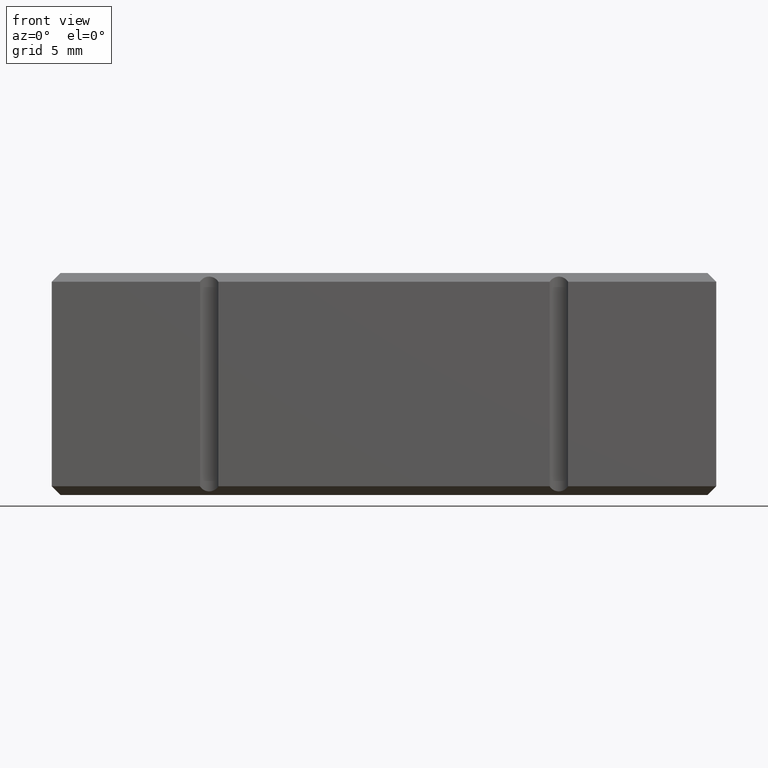
[diagram: clean part render]
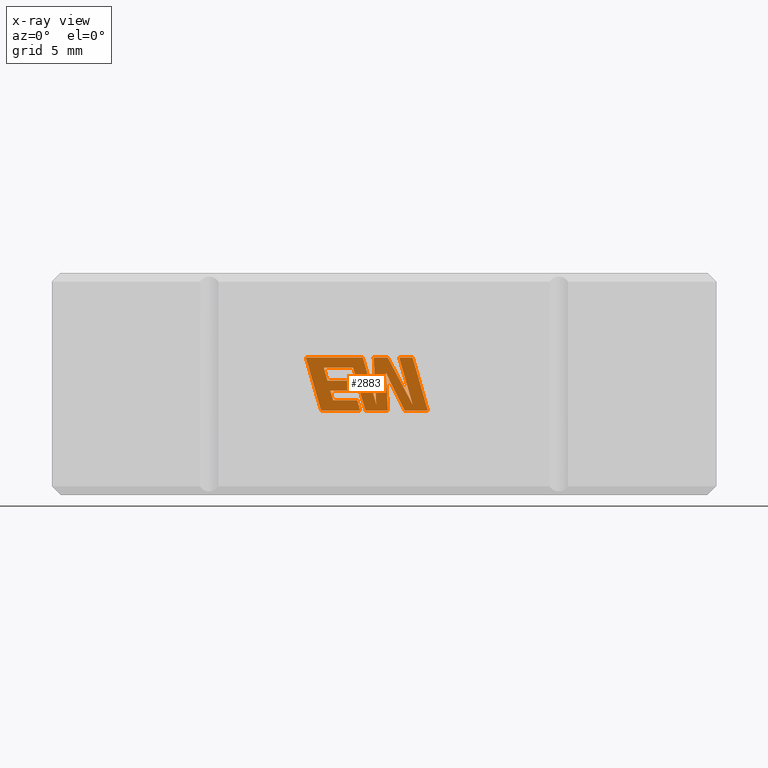
[diagram: x-ray — body ghosted, one internal face saturated and labeled with its STEP entity id]
A machine part, front view, then the same camera in x-ray: the body is ghosted and one INTERNAL B-rep face — a face not visible from any outside direction — is saturated and labeled: STEP entity #2883.
In plain terms, the highlighted planar face has unit normal (0, -1, 0).
Its self-contained STEP definition (entity closure, byte-faithful):
#35 = ORIENTED_EDGE ( 'NONE', *, *, #2086, .F. ) ;
#47 = ORIENTED_EDGE ( 'NONE', *, *, #518, .F. ) ;
#60 = EDGE_CURVE ( 'NONE', #227, #1755, #3002, .T. ) ;
#84 = VECTOR ( 'NONE', #2095, 1000.000000000000227 ) ;
#107 = DIRECTION ( 'NONE',  ( 1.000000000000000000, 0.000000000000000000, 0.000000000000000000 ) ) ;
#119 = DIRECTION ( 'NONE',  ( 0.2763139702539137987, 0.000000000000000000, -0.9610674221107066151 ) ) ;
#133 = ORIENTED_EDGE ( 'NONE', *, *, #1834, .F. ) ;
#146 = EDGE_LOOP ( 'NONE', ( #35, #1732, #2320, #544, #1477, #1903, #47, #1856, #2845, #1356, #1047, #1878, #3263, #3109, #133, #2924, #1586, #172, #1027, #2221, #1473, #793, #2533 ) ) ;
#157 = EDGE_CURVE ( 'NONE', #2633, #1799, #1066, .T. ) ;
#172 = ORIENTED_EDGE ( 'NONE', *, *, #2573, .F. ) ;
#178 = DIRECTION ( 'NONE',  ( 1.000000000000000000, 0.000000000000000000, 0.000000000000000000 ) ) ;
#224 = LINE ( 'NONE', #2260, #3128 ) ;
#227 = VERTEX_POINT ( 'NONE', #2700 ) ;
#228 = VECTOR ( 'NONE', #2262, 1000.000000000000000 ) ;
#265 = CARTESIAN_POINT ( 'NONE',  ( 17.46825721046975843, 12.00000000000000000, 5.412578846798971277 ) ) ;
#303 = LINE ( 'NONE', #1322, #473 ) ;
#309 = CARTESIAN_POINT ( 'NONE',  ( 14.52730462037847836, 12.00000000000000000, 7.861159625087134728 ) ) ;
#316 = DIRECTION ( 'NONE',  ( 0.05375259206908789694, 0.000000000000000000, -0.9985542843760945031 ) ) ;
#362 = DIRECTION ( 'NONE',  ( 0.2740217765954066076, 0.000000000000000000, -0.9617234872620595842 ) ) ;
#403 = VECTOR ( 'NONE', #1235, 1000.000000000000000 ) ;
#456 = EDGE_CURVE ( 'NONE', #1799, #2404, #2367, .T. ) ;
#457 = CARTESIAN_POINT ( 'NONE',  ( 15.92670907585014639, 12.00000000000000000, 5.975084558317764305 ) ) ;
#459 = CARTESIAN_POINT ( 'NONE',  ( 17.93340121282047406, 12.00000000000000000, 4.836932798821947266 ) ) ;
#473 = VECTOR ( 'NONE', #2345, 1000.000000000000000 ) ;
#479 = CARTESIAN_POINT ( 'NONE',  ( 19.22131242482318569, 12.00000000000000000, 4.836932798821947266 ) ) ;
#518 = EDGE_CURVE ( 'NONE', #2410, #2781, #2136, .T. ) ;
#532 = VERTEX_POINT ( 'NONE', #2624 ) ;
#544 = ORIENTED_EDGE ( 'NONE', *, *, #782, .F. ) ;
#581 = LINE ( 'NONE', #1355, #84 ) ;
#591 = VERTEX_POINT ( 'NONE', #1183 ) ;
#595 = CARTESIAN_POINT ( 'NONE',  ( 20.63348747674318062, 12.00000000000000000, 7.861159625087134728 ) ) ;
#610 = LINE ( 'NONE', #1637, #1292 ) ;
#613 = LINE ( 'NONE', #830, #771 ) ;
#621 = EDGE_CURVE ( 'NONE', #1711, #2051, #1213, .T. ) ;
#624 = DIRECTION ( 'NONE',  ( -0.2760118818968571586, 0.000000000000000000, 0.9611542233438685745 ) ) ;
#627 = FACE_OUTER_BOUND ( 'NONE', #146, .T. ) ;
#699 = VECTOR ( 'NONE', #107, 1000.000000000000000 ) ;
#701 = VERTEX_POINT ( 'NONE', #2123 ) ;
#771 = VECTOR ( 'NONE', #316, 1000.000000000000114 ) ;
#780 = LINE ( 'NONE', #2076, #403 ) ;
#782 = EDGE_CURVE ( 'NONE', #3200, #227, #2138, .T. ) ;
#793 = ORIENTED_EDGE ( 'NONE', *, *, #1631, .F. ) ;
#830 = CARTESIAN_POINT ( 'NONE',  ( 19.10500930886436066, 12.00000000000000000, 6.997479300053103479 ) ) ;
#853 = CARTESIAN_POINT ( 'NONE',  ( -20.99801050622235010, 12.00000000000000000, 0.000000000000000000 ) ) ;
#920 = AXIS2_PLACEMENT_3D ( 'NONE', #853, #2925, #2405 ) ;
#952 = CARTESIAN_POINT ( 'NONE',  ( 15.39755535897003114, 12.00000000000000000, 4.836932798821948154 ) ) ;
#981 = EDGE_CURVE ( 'NONE', #1262, #988, #303, .T. ) ;
#982 = EDGE_CURVE ( 'NONE', #1539, #2928, #2427, .T. ) ;
#985 = CARTESIAN_POINT ( 'NONE',  ( 20.64187375165472460, 12.00000000000000000, 5.155804350488072174 ) ) ;
#988 = VERTEX_POINT ( 'NONE', #2193 ) ;
#1027 = ORIENTED_EDGE ( 'NONE', *, *, #981, .F. ) ;
#1029 = EDGE_CURVE ( 'NONE', #1755, #1196, #2709, .T. ) ;
#1047 = ORIENTED_EDGE ( 'NONE', *, *, #2770, .F. ) ;
#1066 = LINE ( 'NONE', #1245, #2018 ) ;
#1096 = EDGE_CURVE ( 'NONE', #2928, #1262, #1766, .T. ) ;
#1146 = VECTOR ( 'NONE', #624, 1000.000000000000114 ) ;
#1161 = EDGE_CURVE ( 'NONE', #591, #1919, #2287, .T. ) ;
#1162 = CARTESIAN_POINT ( 'NONE',  ( 19.22131242482318569, 12.00000000000000000, 4.836932798821947266 ) ) ;
#1167 = DIRECTION ( 'NONE',  ( 1.000000000000000000, 0.000000000000000000, 0.000000000000000000 ) ) ;
#1174 = DIRECTION ( 'NONE',  ( -1.000000000000000000, 0.000000000000000000, 0.000000000000000000 ) ) ;
#1183 = CARTESIAN_POINT ( 'NONE',  ( 15.39755535897003114, 12.00000000000000000, 4.836932798821948154 ) ) ;
#1196 = VERTEX_POINT ( 'NONE', #2067 ) ;
#1198 = EDGE_CURVE ( 'NONE', #2051, #1926, #2856, .T. ) ;
#1203 = CARTESIAN_POINT ( 'NONE',  ( 19.86498469222380336, 12.00000000000000000, 7.861159625087134728 ) ) ;
#1212 = CARTESIAN_POINT ( 'NONE',  ( 16.09038856426462871, 12.00000000000000000, 5.412578846798971277 ) ) ;
#1213 = LINE ( 'NONE', #2486, #228 ) ;
#1234 = CARTESIAN_POINT ( 'NONE',  ( 17.78532644624192471, 12.00000000000000000, 7.861159625087134728 ) ) ;
#1235 = DIRECTION ( 'NONE',  ( -0.4443210308329511027, 0.000000000000000000, 0.8958676361826806156 ) ) ;
#1245 = CARTESIAN_POINT ( 'NONE',  ( 15.92670907585014639, 12.00000000000000000, 5.975084558317764305 ) ) ;
#1255 = DIRECTION ( 'NONE',  ( 0.2759782365590778275, 0.000000000000000000, -0.9611638845408942977 ) ) ;
#1262 = VERTEX_POINT ( 'NONE', #2800 ) ;
#1271 = CARTESIAN_POINT ( 'NONE',  ( 17.06505394035912460, 12.00000000000000000, 6.534160356962032346 ) ) ;
#1273 = EDGE_CURVE ( 'NONE', #2804, #2410, #1826, .T. ) ;
#1282 = CARTESIAN_POINT ( 'NONE',  ( 18.55839018729306744, 12.00000000000000000, 5.168769972878560992 ) ) ;
#1292 = VECTOR ( 'NONE', #362, 1000.000000000000114 ) ;
#1322 = CARTESIAN_POINT ( 'NONE',  ( 17.22950584882248748, 12.00000000000000000, 7.285798636887586888 ) ) ;
#1355 = CARTESIAN_POINT ( 'NONE',  ( 19.21370584693255168, 12.00000000000000000, 7.861159625087134728 ) ) ;
#1356 = ORIENTED_EDGE ( 'NONE', *, *, #1161, .F. ) ;
#1374 = CARTESIAN_POINT ( 'NONE',  ( 16.09038856426462871, 12.00000000000000000, 5.412578846798971277 ) ) ;
#1426 = LINE ( 'NONE', #2726, #1669 ) ;
#1427 = LINE ( 'NONE', #3220, #2168 ) ;
#1464 = DIRECTION ( 'NONE',  ( 0.2732148821746252509, 0.000000000000000000, -0.9619530280415492518 ) ) ;
#1473 = ORIENTED_EDGE ( 'NONE', *, *, #982, .F. ) ;
#1477 = ORIENTED_EDGE ( 'NONE', *, *, #1742, .F. ) ;
#1480 = DIRECTION ( 'NONE',  ( -0.2765379750249967183, 0.000000000000000000, 0.9610029908221275896 ) ) ;
#1494 = EDGE_CURVE ( 'NONE', #2781, #532, #1427, .T. ) ;
#1514 = DIRECTION ( 'NONE',  ( -1.000000000000000000, 0.000000000000000000, 0.000000000000000000 ) ) ;
#1539 = VERTEX_POINT ( 'NONE', #479 ) ;
#1551 = DIRECTION ( 'NONE',  ( 1.000000000000000000, 0.000000000000000000, 0.000000000000000000 ) ) ;
#1586 = ORIENTED_EDGE ( 'NONE', *, *, #621, .F. ) ;
#1603 = VECTOR ( 'NONE', #1985, 1000.000000000000114 ) ;
#1613 = EDGE_CURVE ( 'NONE', #2483, #2098, #780, .T. ) ;
#1631 = EDGE_CURVE ( 'NONE', #2098, #1539, #613, .T. ) ;
#1637 = CARTESIAN_POINT ( 'NONE',  ( 15.55304167746695043, 12.00000000000000000, 7.285798636887586888 ) ) ;
#1669 = VECTOR ( 'NONE', #1514, 1000.000000000000000 ) ;
#1711 = VERTEX_POINT ( 'NONE', #2373 ) ;
#1732 = ORIENTED_EDGE ( 'NONE', *, *, #1029, .F. ) ;
#1742 = EDGE_CURVE ( 'NONE', #532, #3200, #581, .T. ) ;
#1755 = VERTEX_POINT ( 'NONE', #595 ) ;
#1766 = LINE ( 'NONE', #459, #1603 ) ;
#1785 = CARTESIAN_POINT ( 'NONE',  ( 18.40747402078669381, 12.00000000000000000, 7.861159625087134728 ) ) ;
#1793 = LINE ( 'NONE', #2117, #2078 ) ;
#1798 = VECTOR ( 'NONE', #178, 1000.000000000000000 ) ;
#1799 = VERTEX_POINT ( 'NONE', #1212 ) ;
#1808 = VECTOR ( 'NONE', #1255, 1000.000000000000227 ) ;
#1826 = LINE ( 'NONE', #2046, #1808 ) ;
#1833 = VECTOR ( 'NONE', #1882, 1000.000000000000114 ) ;
#1834 = EDGE_CURVE ( 'NONE', #1926, #2633, #224, .T. ) ;
#1837 = LINE ( 'NONE', #2323, #2154 ) ;
#1856 = ORIENTED_EDGE ( 'NONE', *, *, #1273, .F. ) ;
#1878 = ORIENTED_EDGE ( 'NONE', *, *, #3033, .F. ) ;
#1882 = DIRECTION ( 'NONE',  ( -0.05596501978067924821, 0.000000000000000000, 0.9984327301130246912 ) ) ;
#1903 = ORIENTED_EDGE ( 'NONE', *, *, #1494, .F. ) ;
#1919 = VERTEX_POINT ( 'NONE', #309 ) ;
#1921 = PLANE ( 'NONE',  #920 ) ;
#1926 = VERTEX_POINT ( 'NONE', #2049 ) ;
#1985 = DIRECTION ( 'NONE',  ( -0.2762517575166442696, 0.000000000000000000, 0.9610853065513825788 ) ) ;
#2018 = VECTOR ( 'NONE', #3038, 1000.000000000000114 ) ;
#2046 = CARTESIAN_POINT ( 'NONE',  ( 17.78532644624192471, 12.00000000000000000, 7.861159625087134728 ) ) ;
#2049 = CARTESIAN_POINT ( 'NONE',  ( 17.22474259180902223, 12.00000000000000000, 5.975084558317764305 ) ) ;
#2051 = VERTEX_POINT ( 'NONE', #2976 ) ;
#2067 = CARTESIAN_POINT ( 'NONE',  ( 21.50297498832534870, 12.00000000000000000, 4.836932798821947266 ) ) ;
#2076 = CARTESIAN_POINT ( 'NONE',  ( 20.17656967092860754, 12.00000000000000000, 4.836932798821947266 ) ) ;
#2078 = VECTOR ( 'NONE', #2099, 1000.000000000000000 ) ;
#2086 = EDGE_CURVE ( 'NONE', #1196, #2483, #1793, .T. ) ;
#2095 = DIRECTION ( 'NONE',  ( 0.4668459304955216993, 0.000000000000000000, -0.8843386665637608113 ) ) ;
#2098 = VERTEX_POINT ( 'NONE', #2871 ) ;
#2099 = DIRECTION ( 'NONE',  ( -1.000000000000000000, 0.000000000000000000, 0.000000000000000000 ) ) ;
#2117 = CARTESIAN_POINT ( 'NONE',  ( 21.50297498832534870, 12.00000000000000000, 4.836932798821947266 ) ) ;
#2123 = CARTESIAN_POINT ( 'NONE',  ( 17.63175278934695811, 12.00000000000000000, 4.836932798821948154 ) ) ;
#2136 = LINE ( 'NONE', #3147, #1833 ) ;
#2138 = LINE ( 'NONE', #2938, #1146 ) ;
#2154 = VECTOR ( 'NONE', #1551, 1000.000000000000000 ) ;
#2168 = VECTOR ( 'NONE', #1167, 1000.000000000000000 ) ;
#2193 = CARTESIAN_POINT ( 'NONE',  ( 15.55304167746695043, 12.00000000000000000, 7.285798636887586888 ) ) ;
#2221 = ORIENTED_EDGE ( 'NONE', *, *, #1096, .F. ) ;
#2260 = CARTESIAN_POINT ( 'NONE',  ( 17.22474259180902223, 12.00000000000000000, 5.975084558317764305 ) ) ;
#2262 = DIRECTION ( 'NONE',  ( 1.000000000000000000, 0.000000000000000000, 0.000000000000000000 ) ) ;
#2287 = LINE ( 'NONE', #952, #2889 ) ;
#2320 = ORIENTED_EDGE ( 'NONE', *, *, #60, .F. ) ;
#2323 = CARTESIAN_POINT ( 'NONE',  ( 17.24702322986160397, 12.00000000000000000, 7.861159625087134728 ) ) ;
#2324 = CARTESIAN_POINT ( 'NONE',  ( 17.93340121282047406, 12.00000000000000000, 4.836932798821947266 ) ) ;
#2345 = DIRECTION ( 'NONE',  ( -1.000000000000000000, 0.000000000000000000, 0.000000000000000000 ) ) ;
#2367 = LINE ( 'NONE', #1374, #699 ) ;
#2373 = CARTESIAN_POINT ( 'NONE',  ( 15.76720433393765930, 12.00000000000000000, 6.534160356962032346 ) ) ;
#2380 = VECTOR ( 'NONE', #1464, 1000.000000000000000 ) ;
#2404 = VERTEX_POINT ( 'NONE', #265 ) ;
#2405 = DIRECTION ( 'NONE',  ( 0.000000000000000000, 0.000000000000000000, -1.000000000000000000 ) ) ;
#2410 = VERTEX_POINT ( 'NONE', #1282 ) ;
#2422 = CARTESIAN_POINT ( 'NONE',  ( 20.17656967092860754, 12.00000000000000000, 4.836932798821947266 ) ) ;
#2427 = LINE ( 'NONE', #1162, #3245 ) ;
#2448 = EDGE_CURVE ( 'NONE', #1919, #2804, #1837, .T. ) ;
#2452 = VECTOR ( 'NONE', #3286, 1000.000000000000000 ) ;
#2457 = CARTESIAN_POINT ( 'NONE',  ( 20.63348747674318062, 12.00000000000000000, 7.861159625087134728 ) ) ;
#2469 = CARTESIAN_POINT ( 'NONE',  ( 17.46825721046975843, 12.00000000000000000, 5.412578846798971277 ) ) ;
#2483 = VERTEX_POINT ( 'NONE', #2422 ) ;
#2486 = CARTESIAN_POINT ( 'NONE',  ( 15.76720433393765930, 12.00000000000000000, 6.534160356962032346 ) ) ;
#2533 = ORIENTED_EDGE ( 'NONE', *, *, #1613, .F. ) ;
#2573 = EDGE_CURVE ( 'NONE', #988, #1711, #610, .T. ) ;
#2624 = CARTESIAN_POINT ( 'NONE',  ( 19.21370584693255168, 12.00000000000000000, 7.861159625087134728 ) ) ;
#2633 = VERTEX_POINT ( 'NONE', #457 ) ;
#2700 = CARTESIAN_POINT ( 'NONE',  ( 19.86498469222380336, 12.00000000000000000, 7.861159625087134728 ) ) ;
#2709 = LINE ( 'NONE', #2457, #2935 ) ;
#2726 = CARTESIAN_POINT ( 'NONE',  ( 17.63175278934695811, 12.00000000000000000, 4.836932798821948154 ) ) ;
#2770 = EDGE_CURVE ( 'NONE', #701, #591, #1426, .T. ) ;
#2781 = VERTEX_POINT ( 'NONE', #1785 ) ;
#2800 = CARTESIAN_POINT ( 'NONE',  ( 17.22950584882248748, 12.00000000000000000, 7.285798636887586888 ) ) ;
#2804 = VERTEX_POINT ( 'NONE', #1234 ) ;
#2845 = ORIENTED_EDGE ( 'NONE', *, *, #2448, .F. ) ;
#2856 = LINE ( 'NONE', #1271, #2452 ) ;
#2871 = CARTESIAN_POINT ( 'NONE',  ( 19.10500930886436066, 12.00000000000000000, 6.997479300053103479 ) ) ;
#2883 = ADVANCED_FACE ( 'NONE', ( #627 ), #1921, .T. ) ;
#2889 = VECTOR ( 'NONE', #1480, 1000.000000000000114 ) ;
#2924 = ORIENTED_EDGE ( 'NONE', *, *, #1198, .F. ) ;
#2925 = DIRECTION ( 'NONE',  ( 0.000000000000000000, -1.000000000000000000, 0.000000000000000000 ) ) ;
#2928 = VERTEX_POINT ( 'NONE', #2324 ) ;
#2935 = VECTOR ( 'NONE', #119, 1000.000000000000227 ) ;
#2938 = CARTESIAN_POINT ( 'NONE',  ( 20.64187375165472460, 12.00000000000000000, 5.155804350488072174 ) ) ;
#2950 = LINE ( 'NONE', #2469, #2380 ) ;
#2976 = CARTESIAN_POINT ( 'NONE',  ( 17.06505394035912460, 12.00000000000000000, 6.534160356962032346 ) ) ;
#3002 = LINE ( 'NONE', #1203, #1798 ) ;
#3033 = EDGE_CURVE ( 'NONE', #2404, #701, #2950, .T. ) ;
#3038 = DIRECTION ( 'NONE',  ( 0.2793947940878254155, 0.000000000000000000, -0.9601763114327604987 ) ) ;
#3109 = ORIENTED_EDGE ( 'NONE', *, *, #157, .F. ) ;
#3128 = VECTOR ( 'NONE', #3277, 1000.000000000000000 ) ;
#3147 = CARTESIAN_POINT ( 'NONE',  ( 18.55839018729306744, 12.00000000000000000, 5.168769972878560992 ) ) ;
#3200 = VERTEX_POINT ( 'NONE', #985 ) ;
#3220 = CARTESIAN_POINT ( 'NONE',  ( 18.40747402078669381, 12.00000000000000000, 7.861159625087134728 ) ) ;
#3245 = VECTOR ( 'NONE', #1174, 1000.000000000000000 ) ;
#3263 = ORIENTED_EDGE ( 'NONE', *, *, #456, .F. ) ;
#3277 = DIRECTION ( 'NONE',  ( -1.000000000000000000, 0.000000000000000000, 0.000000000000000000 ) ) ;
#3286 = DIRECTION ( 'NONE',  ( 0.2746459304916928357, 0.000000000000000000, -0.9615454294334471186 ) ) ;